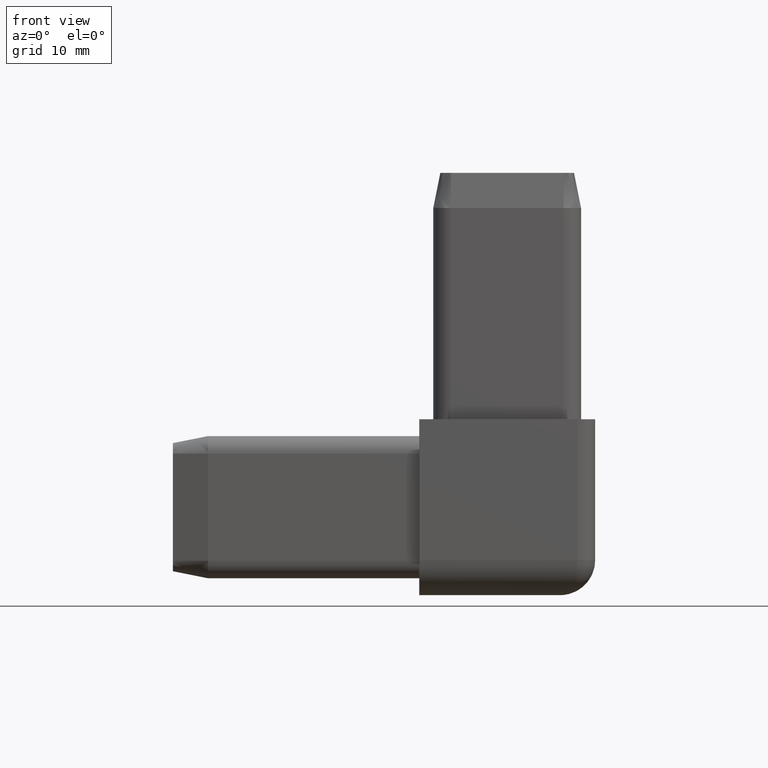
[diagram: clean part render]
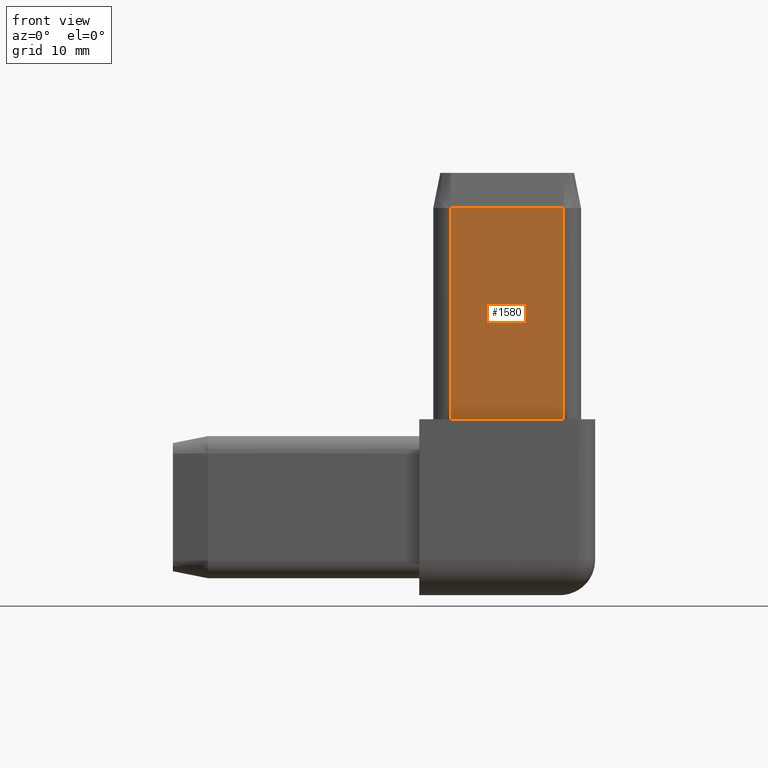
[diagram: same view with one face highlighted and labeled with its STEP entity id]
A machine part, front view. The second image highlights one B-rep face of the part: STEP entity #1580.
In plain terms, the highlighted planar face has unit normal (0, -1, 0).
Its self-contained STEP definition (entity closure, byte-faithful):
#52=CARTESIAN_POINT('',(4.500000000000000,-23.0,0.0));
#53=VERTEX_POINT('',#52);
#103=CARTESIAN_POINT('',(20.500000000000000,-23.0,0.0));
#104=VERTEX_POINT('',#103);
#112=CARTESIAN_POINT('',(4.500000000000000,-23.0,0.0));
#113=DIRECTION('',(1.0,0.0,0.0));
#114=VECTOR('',#113,16.0);
#115=LINE('',#112,#114);
#116=EDGE_CURVE('',#53,#104,#115,.T.);
#1538=CARTESIAN_POINT('',(20.500000000000000,-23.0,30.000000000000028));
#1539=VERTEX_POINT('',#1538);
#1547=CARTESIAN_POINT('',(20.500000000000000,-23.0,0.0));
#1548=DIRECTION('',(0.0,0.0,1.0));
#1549=VECTOR('',#1548,30.000000000000028);
#1550=LINE('',#1547,#1549);
#1551=EDGE_CURVE('',#104,#1539,#1550,.T.);
#1557=CARTESIAN_POINT('',(4.500000000000000,-23.0,0.0));
#1558=DIRECTION('',(0.0,-1.0,0.0));
#1559=DIRECTION('',(1.0,0.0,0.0));
#1560=AXIS2_PLACEMENT_3D('',#1557,#1558,#1559);
#1561=PLANE('',#1560);
#1562=ORIENTED_EDGE('',*,*,#1551,.T.);
#1563=CARTESIAN_POINT('',(4.500000000000000,-23.0,30.000000000000028));
#1564=VERTEX_POINT('',#1563);
#1565=CARTESIAN_POINT('',(4.500000000000000,-23.0,30.000000000000028));
#1566=DIRECTION('',(1.0,0.0,0.0));
#1567=VECTOR('',#1566,16.0);
#1568=LINE('',#1565,#1567);
#1569=EDGE_CURVE('',#1564,#1539,#1568,.T.);
#1570=ORIENTED_EDGE('',*,*,#1569,.F.);
#1571=CARTESIAN_POINT('',(4.500000000000000,-23.0,0.0));
#1572=DIRECTION('',(0.0,0.0,1.0));
#1573=VECTOR('',#1572,30.000000000000028);
#1574=LINE('',#1571,#1573);
#1575=EDGE_CURVE('',#53,#1564,#1574,.T.);
#1576=ORIENTED_EDGE('',*,*,#1575,.F.);
#1577=ORIENTED_EDGE('',*,*,#116,.T.);
#1578=EDGE_LOOP('',(#1562,#1570,#1576,#1577));
#1579=FACE_OUTER_BOUND('',#1578,.T.);
#1580=ADVANCED_FACE('',(#1579),#1561,.T.);